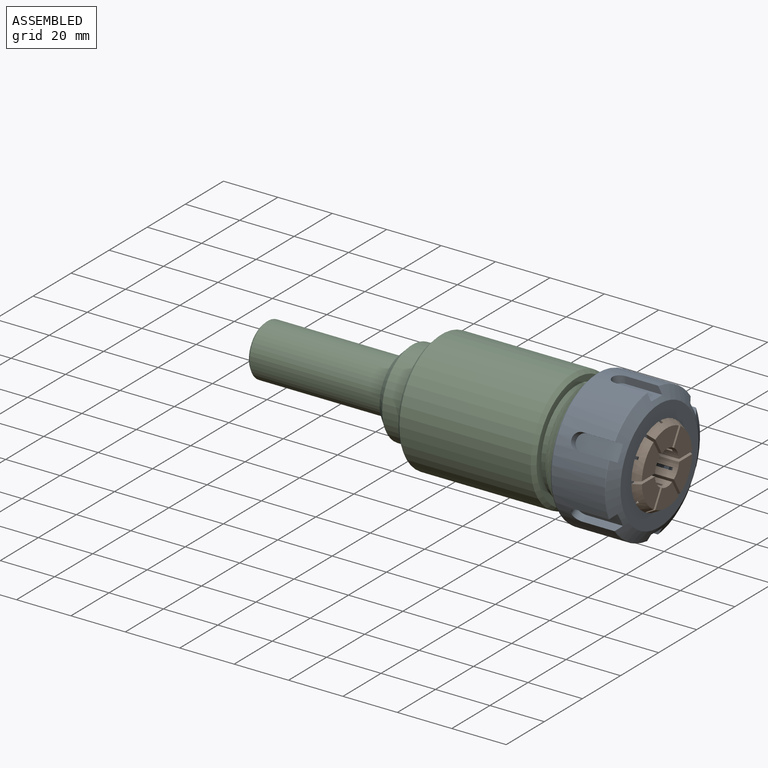
[diagram: assembled view]
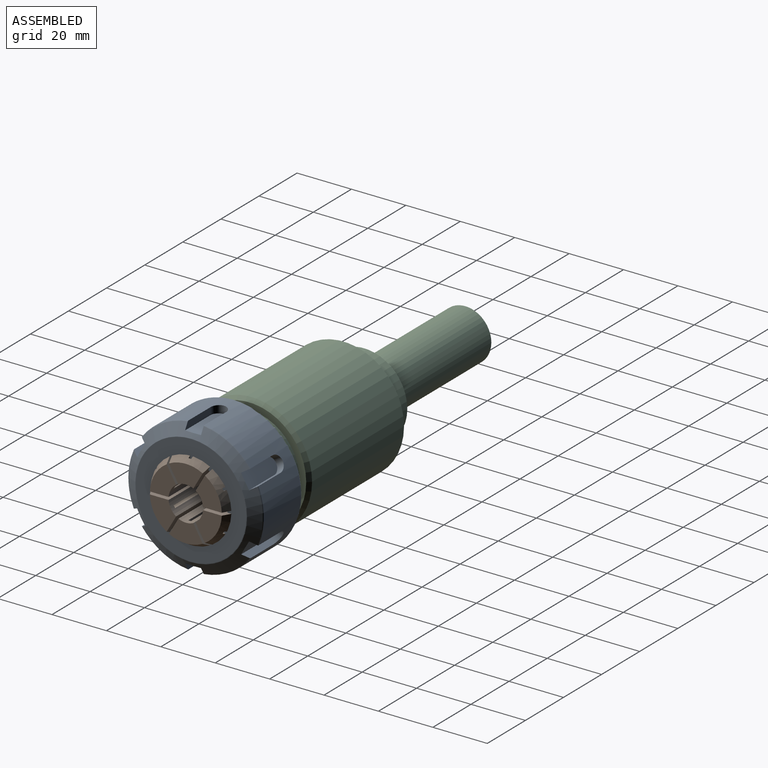
[diagram: assembled view, second angle]
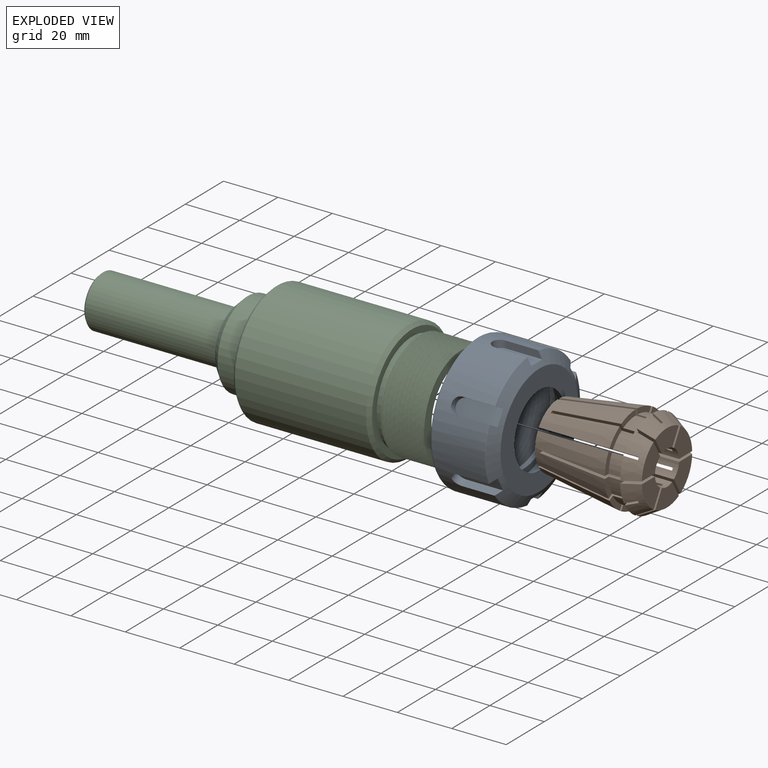
[diagram: exploded view]
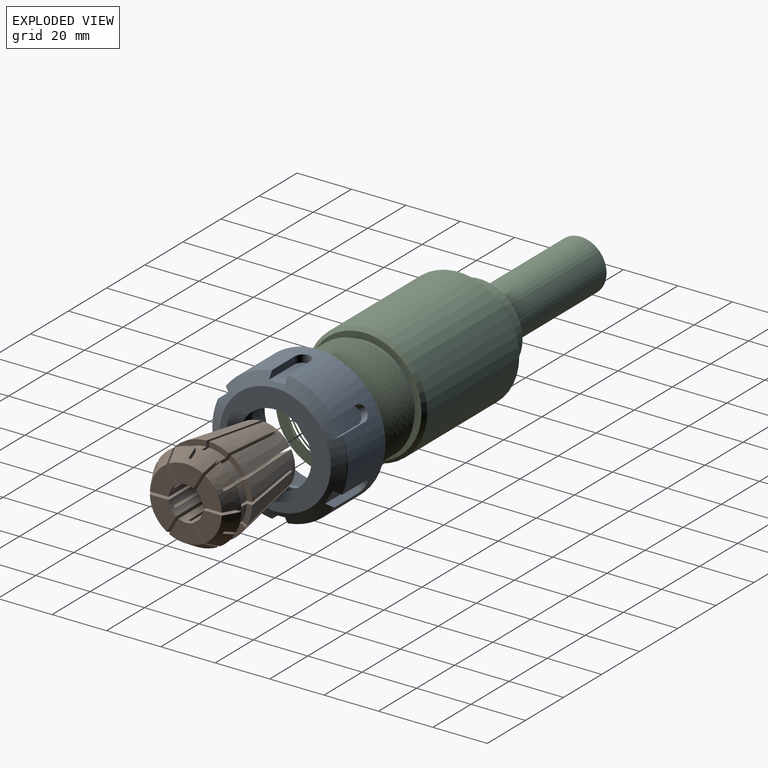
[diagram: exploded view, second angle]
ASSEMBLY  parts=3 mates=2
PART A: 50 faces, bbox 54.3x24.2x54.3 mm
  f0: plane 48.26x48.26mm, normal (0,1,0), area 559.7mm2, adj f1,f13,f39,f40
  f1: torus R=19.98mm, axis (0,-1,0), area 30.9mm2, adj f0,f39,f40,f41
  f2: torus R=24.51mm, axis (0,-1,0), area 8mm2, adj f7,f9,f10,f32,f35
  f3: torus R=24.51mm, axis (0,-1,0), area 8mm2, adj f7,f9,f28,f31
  f4: torus R=24.51mm, axis (0,-1,0), area 8mm2, adj f7,f9,f24,f27
  f5: torus R=24.51mm, axis (0,-1,0), area 8mm2, adj f7,f9,f20,f23
  f6: torus R=24.51mm, axis (0,-1,0), area 8mm2, adj f7,f9,f16,f19
  f7: cylinder r=24.89mm len=49.78mm, axis (0,1,0), area 2617.9mm2, adj f2,f3,f4,f5,f6,f12,f13,f14
  f8: plane 40.78x40.78mm, normal (0,-1,0), area 742.2mm2, adj f11,f46
  f9: cone r=20.49mm half-angle=60deg, axis (0,1,0), area 578.4mm2, adj f2,f3,f4,f5,f6,f10,f11,f12
  f10: cone r=20.49mm half-angle=60deg, axis (0,1,0), area 0.4mm2, adj f2,f9,f32
  f11: torus R=20.39mm, axis (0,-1,0), area 25.7mm2, adj f8,f9
  f12: torus R=24.51mm, axis (0,-1,0), area 8mm2, adj f7,f9,f15,f36
  f13: torus R=24.13mm, axis (0,-1,0), area 185.1mm2, adj f0,f7
  f14: cylinder r=2.92mm len=5.84mm, axis (0,0,1), area 24.1mm2, adj f7,f15,f16,f17
  f15: plane 13.31x2.64mm, normal (1,0,0), area 32.9mm2, adj f7,f9,f12,f14,f17
  f16: plane 13.31x2.64mm, normal (-1,0,0), area 32.9mm2, adj f6,f7,f9,f14,f17
  f17: plane 16.81x6.29mm, normal (0,0,1), area 91.5mm2, adj f9,f14,f15,f16
  f18: cylinder r=2.92mm len=6.37mm, axis (0.87,0,0.5), area 24.1mm2, adj f7,f19,f20,f21
  f19: plane 13.31x2.29mm, normal (0.5,0,-0.87), area 32.9mm2, adj f6,f7,f9,f18,f21
  f20: plane 13.31x2.29mm, normal (-0.5,0,0.87), area 32.9mm2, adj f5,f7,f9,f18,f21
  f21: plane 16.81x5.5mm, normal (0.87,0,0.5), area 91.5mm2, adj f9,f18,f19,f20
  f22: cylinder r=2.92mm len=6.37mm, axis (0.87,0,-0.5), area 24.1mm2, adj f7,f23,f24,f25
  f23: plane 13.31x2.29mm, normal (-0.5,0,-0.87), area 32.9mm2, adj f5,f7,f9,f22,f25
  f24: plane 13.31x2.29mm, normal (0.5,0,0.87), area 32.9mm2, adj f4,f7,f9,f22,f25
  f25: plane 16.81x5.5mm, normal (0.87,0,-0.5), area 91.5mm2, adj f9,f22,f23,f24
  f26: cylinder r=2.92mm len=5.84mm, axis (0,0,-1), area 24.1mm2, adj f7,f27,f28,f29
  f27: plane 13.31x2.64mm, normal (-1,0,0), area 32.9mm2, adj f4,f7,f9,f26,f29
  f28: plane 13.31x2.64mm, normal (1,0,0), area 32.9mm2, adj f3,f7,f9,f26,f29
  f29: plane 16.81x6.29mm, normal (0,0,-1), area 91.5mm2, adj f9,f26,f27,f28
  f30: cylinder r=2.92mm len=6.37mm, axis (-0.87,0,-0.5), area 24.1mm2, adj f7,f31,f32,f33
  f31: plane 13.31x2.29mm, normal (-0.5,0,0.87), area 32.9mm2, adj f3,f7,f9,f30,f33
  f32: plane 13.31x2.29mm, normal (0.5,0,-0.87), area 32.9mm2, adj f2,f7,f10,f30,f33
  f33: plane 16.81x5.5mm, normal (-0.87,0,-0.5), area 91.5mm2, adj f9,f30,f31,f32
  f34: cylinder r=2.92mm len=6.37mm, axis (-0.87,0,0.5), area 24.1mm2, adj f7,f35,f36,f37
  f35: plane 13.31x2.29mm, normal (0.5,0,0.87), area 32.9mm2, adj f2,f7,f9,f34,f37
  f36: plane 13.31x2.29mm, normal (-0.5,0,-0.87), area 32.9mm2, adj f7,f9,f12,f34,f37
  f37: plane 16.81x5.5mm, normal (-0.87,0,0.5), area 91.5mm2, adj f9,f34,f35,f36
  f38: plane 0.11x0.1mm, normal (1,0,0), area 0mm2, adj f39,f40,f44
  f39: bspline ~41.09x41.09mm, area 1570.3mm2, adj f0,f1,f38,f40,f43,f44
  f40: bspline ~41.09x41.09mm, area 1568.1mm2, adj f0,f1,f38,f39,f41,f43,f44
  f41: plane 0.52x0.3mm, normal (0,0,1), area 0mm2, adj f1,f40
  f42: plane 40.89x40.89mm, normal (0,1,0), area 463.6mm2, adj f44,f48
  f43: plane 40.9x40.9mm, normal (0,-1,0), area 69.5mm2, adj f39,f40,f44
  f44: cylinder r=20.45mm len=40.89mm, axis (0,1,0), area 317.2mm2, adj f38,f39,f40,f42,f43
  f45: plane 33.69x21.27mm, normal (0,-1,0), area 85.6mm2, adj f46,f48
  f46: cone r=16.84mm half-angle=30deg, axis (0,1,0), area 653.8mm2, adj f8,f45,f47,f48,f49
  f47: cylinder r=16.45mm len=0.1mm, axis (0,1,0), area 0mm2, adj f46,f48,f49
  f48: cylinder r=16.45mm len=32.89mm, axis (0,1,0), area 184.7mm2, adj f42,f45,f46,f47,f49
  f49: plane 32.54x14.03mm, normal (0,1,0), area 44.5mm2, adj f46,f47,f48
PART B: 97 faces, bbox 33x40x33 mm
  f0: plane 6.48x6.44mm, normal (0,-1,0), area 14.6mm2, adj f10,f48,f76,f94
  f1: plane 7.23x3.66mm, normal (0,-1,0), area 14.2mm2, adj f11,f43,f75,f95
  f2: plane 7.45x3.71mm, normal (0,-1,0), area 14.6mm2, adj f12,f47,f63,f81
  f3: plane 7.17x3.7mm, normal (0,-1,0), area 14.1mm2, adj f13,f48,f77,f80
  f4: plane 7.32x3.7mm, normal (0,-1,0), area 14.4mm2, adj f14,f46,f66,f84
  f5: plane 6.39x6.39mm, normal (0,-1,0), area 14.4mm2, adj f15,f47,f62,f83
  f6: plane 6.3x6.26mm, normal (0,-1,0), area 14.1mm2, adj f16,f45,f69,f87
  f7: plane 7.41x3.77mm, normal (0,-1,0), area 14.6mm2, adj f17,f46,f65,f86
  f8: plane 7.19x3.71mm, normal (0,-1,0), area 14.1mm2, adj f18,f44,f72,f90
  f9: plane 7.47x3.72mm, normal (0,-1,0), area 14.7mm2, adj f19,f45,f68,f89
  f10: cylinder r=14.48mm len=5.66mm, axis (0,1,0), area 38.1mm2, adj f0,f20,f76,f94
  f11: cylinder r=14.48mm len=6.22mm, axis (0,1,0), area 36.7mm2, adj f1,f21,f75,f95
  f12: cylinder r=14.48mm len=6.44mm, axis (0,1,0), area 38mm2, adj f2,f22,f63,f81
  f13: cylinder r=14.48mm len=6.16mm, axis (0,1,0), area 36.5mm2, adj f3,f23,f77,f80
  f14: cylinder r=14.48mm len=6.31mm, axis (0,1,0), area 37.3mm2, adj f4,f24,f66,f84
  f15: cylinder r=14.48mm len=5.66mm, axis (0,1,0), area 37.5mm2, adj f5,f25,f62,f83
  f16: cylinder r=14.48mm len=5.66mm, axis (0,1,0), area 36.6mm2, adj f6,f26,f69,f87
  f17: cylinder r=14.48mm len=6.4mm, axis (0,1,0), area 37.9mm2, adj f7,f27,f65,f86
  f18: cylinder r=14.48mm len=6.18mm, axis (0,1,0), area 36.6mm2, adj f8,f28,f72,f90
  f19: cylinder r=14.48mm len=6.46mm, axis (0,1,0), area 38.2mm2, adj f9,f29,f68,f89
  f20: plane 6.48x6.44mm, normal (0,1,0), area 14.7mm2, adj f10,f30,f76,f94
  f21: plane 7.23x3.66mm, normal (0,1,0), area 14.2mm2, adj f11,f30,f75,f95
  f22: plane 7.45x3.71mm, normal (0,1,0), area 14.6mm2, adj f12,f31,f63,f81
  f23: plane 7.17x3.7mm, normal (0,1,0), area 14.1mm2, adj f13,f31,f77,f80
  f24: plane 7.32x3.71mm, normal (0,1,0), area 14.4mm2, adj f14,f32,f66,f84
  f25: plane 6.39x6.39mm, normal (0,1,0), area 14.5mm2, adj f15,f32,f62,f83
  f26: plane 6.3x6.26mm, normal (0,1,0), area 14.1mm2, adj f16,f33,f69,f87
  f27: plane 7.41x3.77mm, normal (0,1,0), area 14.6mm2, adj f17,f33,f65,f86
  f28: plane 7.2x3.72mm, normal (0,1,0), area 14.1mm2, adj f18,f34,f72,f90
  f29: plane 7.47x3.72mm, normal (0,1,0), area 14.7mm2, adj f19,f34,f68,f89
  f30: cone r=13.23mm half-angle=30deg, axis (0,1,0), area 91.1mm2, adj f20,f21,f55,f75,f76,f94,f95,f96
  f31: cone r=13.23mm half-angle=30deg, axis (0,1,0), area 90.8mm2, adj f22,f23,f56,f63,f77,f79,f80,f81
  f32: cone r=13.23mm half-angle=30deg, axis (0,1,0), area 91.1mm2, adj f24,f25,f57,f62,f66,f82,f83,f84
  f33: cone r=13.23mm half-angle=30deg, axis (0,1,0), area 90.8mm2, adj f26,f27,f58,f65,f69,f85,f86,f87
  f34: cone r=13.23mm half-angle=30deg, axis (0,1,0), area 91.1mm2, adj f28,f29,f59,f68,f72,f88,f89,f90
  f35: plane 7.32x3.72mm, normal (0,-1,0), area 14.4mm2, adj f43,f49,f74,f93
  f36: plane 6.35x6.35mm, normal (0,-1,0), area 14.3mm2, adj f44,f50,f71,f92
  f37: plane 11.24x6.47mm, normal (0,1,0), area 50.3mm2, adj f43,f54,f93,f95
  f38: plane 9.66x8.57mm, normal (0,1,0), area 50mm2, adj f44,f54,f90,f92
  f39: plane 9.88x8.49mm, normal (0,1,0), area 51mm2, adj f45,f54,f87,f89
  f40: plane 11.41x6.51mm, normal (0,1,0), area 51.5mm2, adj f46,f54,f84,f86
  f41: plane 9.96x8.61mm, normal (0,1,0), area 51.8mm2, adj f47,f54,f81,f83
  f42: plane 9.73x8.68mm, normal (0,1,0), area 50.8mm2, adj f48,f54,f80,f94
  f43: cone r=12.19mm half-angle=8.5deg, axis (0,-1,0), area 376.4mm2, adj f1,f35,f37,f73,f74,f75,f93,f95
  f44: cone r=12.19mm half-angle=8.5deg, axis (0,-1,0), area 374.8mm2, adj f8,f36,f38,f70,f71,f72,f90,f92
  f45: cone r=12.19mm half-angle=8.5deg, axis (0,-1,0), area 379.7mm2, adj f6,f9,f39,f67,f68,f69,f87,f89
  f46: cone r=12.19mm half-angle=8.5deg, axis (0,-1,0), area 382.1mm2, adj f4,f7,f40,f64,f65,f66,f84,f86
  f47: cone r=12.19mm half-angle=8.5deg, axis (0,-1,0), area 383.7mm2, adj f2,f5,f41,f61,f62,f63,f81,f83
  f48: cone r=12.19mm half-angle=8.5deg, axis (0,-1,0), area 378.6mm2, adj f0,f3,f42,f76,f77,f78,f80,f94
  f49: cylinder r=14.48mm len=6.31mm, axis (0,1,0), area 37.4mm2, adj f35,f51,f74,f93
  f50: cylinder r=14.48mm len=5.66mm, axis (0,1,0), area 37.1mm2, adj f36,f52,f71,f92
  f51: plane 7.33x3.72mm, normal (0,1,0), area 14.4mm2, adj f49,f53,f74,f93
  f52: plane 6.35x6.35mm, normal (0,1,0), area 14.3mm2, adj f50,f53,f71,f92
  f53: cone r=13.23mm half-angle=30deg, axis (0,1,0), area 90.8mm2, adj f51,f52,f60,f71,f74,f91,f92,f93
  f54: cylinder r=6.35mm len=39.98mm, axis (0,-1,0), area 1141.7mm2, adj f37,f38,f39,f40,f41,f42,f55,f56
  f55: plane 10.72x9.64mm, normal (0,-1,0), area 63.9mm2, adj f30,f54,f75,f76
  f56: plane 12.34x7.49mm, normal (0,-1,0), area 63.5mm2, adj f31,f54,f63,f77
  f57: plane 10.72x9.64mm, normal (0,-1,0), area 63.9mm2, adj f32,f54,f62,f66
  f58: plane 10.69x9.61mm, normal (0,-1,0), area 63.5mm2, adj f33,f54,f65,f69
  f59: plane 12.38x7.5mm, normal (0,-1,0), area 63.9mm2, adj f34,f54,f68,f72
  f60: plane 10.69x9.61mm, normal (0,-1,0), area 63.5mm2, adj f53,f54,f71,f74
  f61: plane 5.81x3.93mm, normal (0,-1,0), area 6.1mm2, adj f47,f54,f62,f63
  f62: plane 38.12x8.82mm, normal (-0.5,0,-0.87), area 312.5mm2, adj f5,f15,f25,f32,f47,f54,f57,f61
  f63: plane 38.12x8.82mm, normal (0.5,0,0.87), area 312.5mm2, adj f2,f12,f22,f31,f47,f54,f56,f61
  f64: plane 6.14x0.99mm, normal (0,-1,0), area 6.1mm2, adj f46,f54,f65,f66
  f65: plane 38.12x10.18mm, normal (-1,0,0), area 312.5mm2, adj f7,f17,f27,f33,f46,f54,f58,f64
  f66: plane 38.12x10.18mm, normal (1,0,0), area 312.5mm2, adj f4,f14,f24,f32,f46,f54,f57,f64
  f67: plane 5.81x3.92mm, normal (0,-1,0), area 6.1mm2, adj f45,f54,f68,f69
  f68: plane 38.12x8.82mm, normal (-0.5,0,0.87), area 312.5mm2, adj f9,f19,f29,f34,f45,f54,f59,f67
  f69: plane 38.12x8.82mm, normal (0.5,0,-0.87), area 312.5mm2, adj f6,f16,f26,f33,f45,f54,f58,f67
  f70: plane 5.81x3.92mm, normal (0,-1,0), area 6.1mm2, adj f44,f54,f71,f72
  f71: plane 38.12x8.82mm, normal (0.5,0,0.87), area 312.5mm2, adj f36,f44,f50,f52,f53,f54,f60,f70
  f72: plane 38.12x8.82mm, normal (-0.5,0,-0.87), area 312.5mm2, adj f8,f18,f28,f34,f44,f54,f59,f70
  f73: plane 6.14x0.99mm, normal (0,-1,0), area 6.1mm2, adj f43,f54,f74,f75
  f74: plane 38.12x10.18mm, normal (-1,0,0), area 312.5mm2, adj f35,f43,f49,f51,f53,f54,f60,f73
  f75: plane 38.12x10.18mm, normal (1,0,0), area 312.5mm2, adj f1,f11,f21,f30,f43,f54,f55,f73
  f76: plane 38.12x8.82mm, normal (-0.5,0,0.87), area 312.5mm2, adj f0,f10,f20,f30,f48,f54,f55,f78
  f77: plane 38.12x8.82mm, normal (0.5,0,-0.87), area 312.5mm2, adj f3,f13,f23,f31,f48,f54,f56,f78
  f78: plane 5.81x3.93mm, normal (0,-1,0), area 6.1mm2, adj f48,f54,f76,f77
  f79: plane 8x0.99mm, normal (0,1,0), area 7.9mm2, adj f31,f54,f80,f81
  f80: plane 38.11x10.18mm, normal (0,0,1), area 310mm2, adj f3,f13,f23,f31,f42,f48,f54,f79
  f81: plane 38.12x10.17mm, normal (0,0,-1), area 309.6mm2, adj f2,f12,f22,f31,f41,f47,f54,f79
  f82: plane 7.4x4.85mm, normal (0,1,0), area 7.9mm2, adj f32,f54,f83,f84
  f83: plane 38.1x8.8mm, normal (0.87,0,0.5), area 309.8mm2, adj f5,f15,f25,f32,f41,f47,f54,f82
  f84: plane 38.11x8.81mm, normal (-0.87,0,-0.5), area 309.8mm2, adj f4,f14,f24,f32,f40,f46,f54,f82
  f85: plane 7.41x4.84mm, normal (0,1,0), area 7.9mm2, adj f33,f54,f86,f87
  f86: plane 38.12x8.81mm, normal (0.87,0,-0.5), area 309.6mm2, adj f7,f17,f27,f33,f40,f46,f54,f85
  f87: plane 38.11x8.81mm, normal (-0.87,0,0.5), area 310mm2, adj f6,f16,f26,f33,f39,f45,f54,f85
  f88: plane 8x0.99mm, normal (0,1,0), area 7.9mm2, adj f34,f54,f89,f90
  f89: plane 38.12x10.17mm, normal (0,0,-1), area 309.6mm2, adj f9,f19,f29,f34,f39,f45,f54,f88
  f90: plane 38.11x10.18mm, normal (0,0,1), area 310mm2, adj f8,f18,f28,f34,f38,f44,f54,f88
  f91: plane 7.4x4.84mm, normal (0,1,0), area 7.9mm2, adj f53,f54,f92,f93
  f92: plane 38.11x8.81mm, normal (-0.87,0,-0.5), area 309.8mm2, adj f36,f38,f44,f50,f52,f53,f54,f91
  f93: plane 38.1x8.8mm, normal (0.87,0,0.5), area 309.8mm2, adj f35,f37,f43,f49,f51,f53,f54,f91
  f94: plane 38.12x8.81mm, normal (0.87,0,-0.5), area 309.6mm2, adj f0,f10,f20,f30,f42,f48,f54,f96
  f95: plane 38.11x8.81mm, normal (-0.87,0,0.5), area 310mm2, adj f1,f11,f21,f30,f37,f43,f54,f96
  f96: plane 7.39x4.85mm, normal (0,1,0), area 7.9mm2, adj f30,f54,f94,f95
PART C: 55 faces, bbox 167.9x79x79 mm
  f0: plane 21.89x18.36mm, normal (-1,0,0), area 23.5mm2, adj f1,f52,f53
  f1: bspline ~44.27x25.34mm, area -25770.2mm2, adj f0,f2,f27,f28,f29,f30,f31,f32
  f2: plane 60.07x60.07mm, normal (-1,0,0), area 169.5mm2, adj f1,f3,f27,f52
  f3: cylinder r=12.78mm len=25.57mm, axis (-1,0,0), area 255mm2, adj f2,f4
  f4: plane 25.57x25.57mm, normal (1,0,0), area 45.3mm2, adj f3,f5
  f5: cone r=11.76mm half-angle=8deg, axis (1,0,0), area 2319.6mm2, adj f4,f6
  f6: plane 38.68x38.42mm, normal (-1,0,0), area 365.6mm2, adj f5,f7,f23,f24,f25,f26
  f7: bspline ~39.92x39.92mm, area 1961.1mm2, adj f6,f8,f21,f22,f23,f26
  f8: cylinder r=18.54mm len=37.08mm, axis (-1,0,0), area 48.4mm2, adj f7,f9,f21
  f9: cylinder r=18.54mm len=37.08mm, axis (-1,0,0), area 186.1mm2, adj f8,f10,f21,f22,f26
  f10: plane 41.91x41.91mm, normal (-1,0,0), area 299.4mm2, adj f9,f11
  f11: cone r=20.96mm half-angle=45deg, axis (-1,0,0), area 243.6mm2, adj f10,f12
  f12: cylinder r=22.23mm len=48.26mm, axis (-1,0,0), area 6739.2mm2, adj f11,f13
  f13: cone r=22.23mm half-angle=45deg, axis (1,0,0), area 243.6mm2, adj f12,f14
  f14: plane 41.91x41.91mm, normal (1,0,0), area 587.8mm2, adj f13,f15
  f15: cylinder r=15.88mm len=31.75mm, axis (1,0,0), area 950.1mm2, adj f14,f16
  f16: cone r=12.7mm half-angle=45deg, axis (1,0,0), area 403.1mm2, adj f15,f17
  f17: plane 25.4x25.4mm, normal (1,0,0), area 221.7mm2, adj f16,f18
  f18: cylinder r=9.53mm len=50.01mm, axis (1,0,0), area 2993.1mm2, adj f17,f19
  f19: cone r=8.74mm half-angle=45deg, axis (1,0,0), area 63.9mm2, adj f18,f20
  f20: plane 17.48x17.48mm, normal (1,0,0), area 239.8mm2, adj f19
  f21: plane 38.41x38.34mm, normal (1,0,0), area 74.8mm2, adj f7,f8,f9,f26
  f22: plane 0.03x0.02mm, normal (0,0.02,1), area 0mm2, adj f7,f9,f26
  f23: bspline ~11.66x3.7mm, area 0.8mm2, adj f6,f7,f24,f25
  f24: cylinder r=19.89mm len=7.77mm, axis (-1,0,0), area 0.4mm2, adj f6,f23,f25
  f25: plane 0.3x0.14mm, normal (0,-0.02,-1), area 0mm2, adj f6,f23,f24,f26
  f26: bspline ~39.92x39.92mm, area 1959mm2, adj f6,f7,f9,f21,f22,f25
  f27: cylinder r=10.34mm len=20.68mm, axis (-1,0,0), area 10.8mm2, adj f1,f2,f28,f52
  f28: cylinder r=10.34mm len=20.68mm, axis (-1,0,0), area 26.4mm2, adj f1,f27,f29,f52
  f29: cylinder r=10.34mm len=20.68mm, axis (-1,0,0), area 29.2mm2, adj f1,f28,f30,f52
  f30: cylinder r=10.34mm len=20.68mm, axis (-1,0,0), area 23.3mm2, adj f1,f29,f31,f52
  f31: cylinder r=10.34mm len=20.68mm, axis (-1,0,0), area 29.2mm2, adj f1,f30,f32,f52
  f32: cylinder r=10.34mm len=20.68mm, axis (-1,0,0), area 23.3mm2, adj f1,f31,f33,f52
  f33: cylinder r=10.34mm len=20.68mm, axis (-1,0,0), area 24mm2, adj f1,f32,f34,f52
  f34: cylinder r=10.34mm len=20.68mm, axis (-1,0,0), area 23.3mm2, adj f1,f33,f35,f52
  f35: cylinder r=10.34mm len=20.68mm, axis (-1,0,0), area 24mm2, adj f1,f34,f36,f52
  f36: cylinder r=10.34mm len=20.68mm, axis (-1,0,0), area 23.3mm2, adj f1,f35,f37,f52
  f37: cylinder r=10.34mm len=20.68mm, axis (-1,0,0), area 24mm2, adj f1,f36,f38,f52
  f38: cylinder r=10.34mm len=20.68mm, axis (-1,0,0), area 23.3mm2, adj f1,f37,f39,f52
  f39: cylinder r=10.34mm len=20.68mm, axis (-1,0,0), area 24mm2, adj f1,f38,f40,f52
  f40: cylinder r=10.34mm len=20.68mm, axis (-1,0,0), area 23.3mm2, adj f1,f39,f41,f52
  f41: cylinder r=10.34mm len=20.68mm, axis (-1,0,0), area 24mm2, adj f1,f40,f42,f52
  f42: cylinder r=10.34mm len=20.68mm, axis (-1,0,0), area 23.3mm2, adj f1,f41,f43,f52
  f43: cylinder r=10.34mm len=20.68mm, axis (-1,0,0), area 24mm2, adj f1,f42,f44,f52
  f44: cylinder r=10.34mm len=20.68mm, axis (-1,0,0), area 23.4mm2, adj f1,f43,f45,f52
  f45: cylinder r=10.34mm len=20.68mm, axis (-1,0,0), area 24mm2, adj f1,f44,f46,f52
  f46: cylinder r=10.34mm len=20.68mm, axis (-1,0,0), area 23.4mm2, adj f1,f45,f47,f52
  f47: cylinder r=10.34mm len=20.68mm, axis (-1,0,0), area 24mm2, adj f1,f46,f48,f52
  f48: cylinder r=10.34mm len=20.68mm, axis (-1,0,0), area 23.4mm2, adj f1,f47,f49,f52
  f49: cylinder r=10.34mm len=20.68mm, axis (-1,0,0), area 24mm2, adj f1,f48,f50,f52
  f50: cylinder r=10.34mm len=20.68mm, axis (-1,0,0), area 24.7mm2, adj f1,f49,f51,f52
  f51: cylinder r=10.34mm len=20.68mm, axis (-1,0,0), area 24mm2, adj f1,f50,f52,f53
  f52: bspline ~44.77x22.65mm, area 7679.9mm2, adj f0,f1,f2,f27,f28,f29,f30,f31
  f53: cylinder r=10.34mm len=20.68mm, axis (-1,0,0), area 227.9mm2, adj f0,f1,f51,f52,f54
  f54: plane 20.68x20.68mm, normal (-1,0,0), area 335.7mm2, adj f53
PLACE A rot(axis=(0,0,1),90deg) t=(34.56,1.31,0.71)mm
PLACE B rot(axis=(0.58,-0.58,0.58),120deg) t=(54.51,1.31,0.71)mm
PLACE C t=(-23.9,1.31,0.71)mm
MATE cylindrical A.f1 <-> B.f10  axis (1,0,0) through (57.42,1.31,0.71)mm
MATE cylindrical B.f10 <-> C.f3  axis (1,0,0) through (60.18,1.31,0.71)mm
